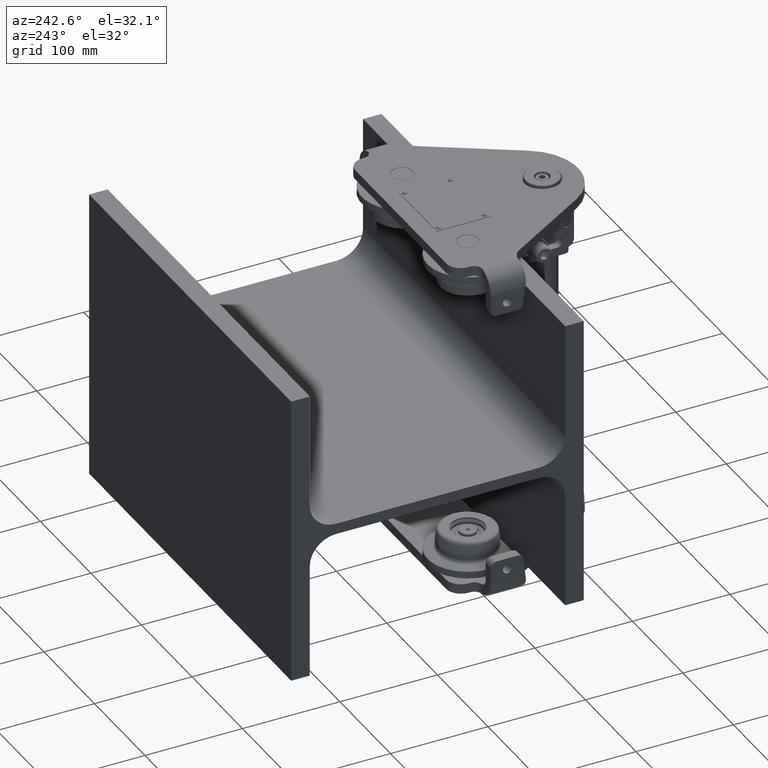
[diagram: clean part render]
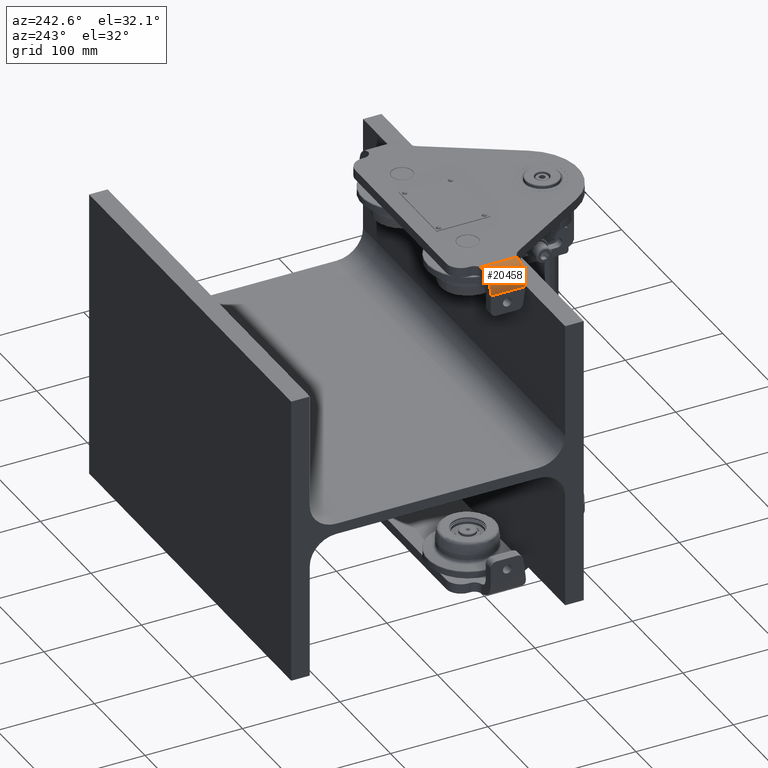
[diagram: same view with one face highlighted and labeled with its STEP entity id]
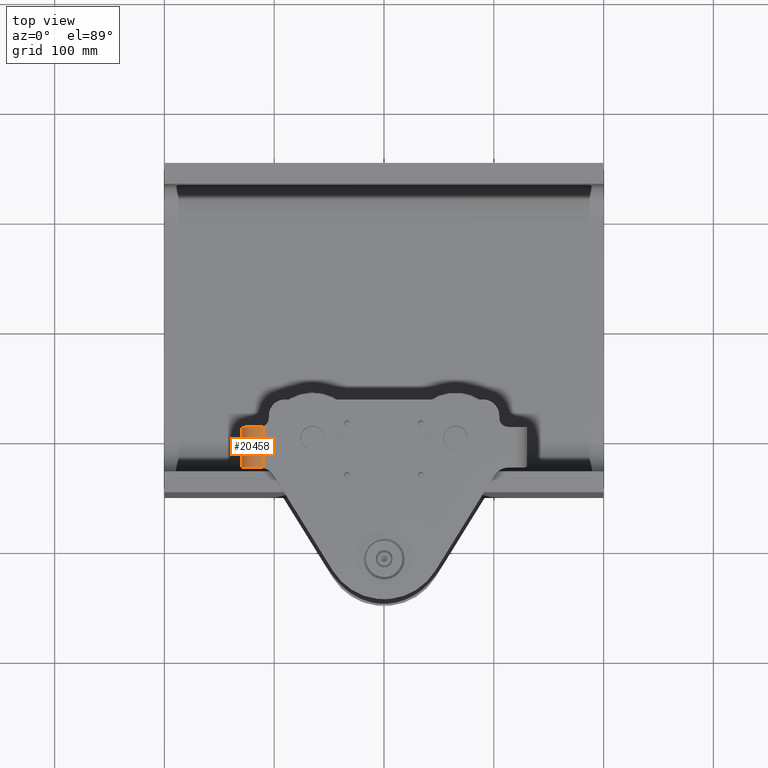
[diagram: same view with one face highlighted and labeled with its STEP entity id]
A machine part, auxiliary view. The second image highlights one B-rep face of the part: STEP entity #20458.
A second angle (top view) of the same face is appended — the face is thin or edge-on in the first view.
In plain terms, the highlighted cylindrical surface (edge-blend (fillet) strip) has radius 20 mm, axis along (0, 1, -0).
Its self-contained STEP definition (entity closure, byte-faithful):
#382 = CARTESIAN_POINT ( 'NONE',  ( -127.3205080756888200, -127.9999999999999400, 164.9999999999998000 ) ) ;
#823 = LINE ( 'NONE', #44113, #13880 ) ;
#3025 = AXIS2_PLACEMENT_3D ( 'NONE', #26393, #43182, #26040 ) ;
#4226 = VERTEX_POINT ( 'NONE', #9128 ) ;
#6996 = DIRECTION ( 'NONE',  ( -0.0000000000000000000, 1.000000000000000000, -1.224606353822377300E-016 ) ) ;
#7060 = AXIS2_PLACEMENT_3D ( 'NONE', #43326, #9977, #27410 ) ;
#8558 = CARTESIAN_POINT ( 'NONE',  ( -127.3205080756888200, -127.9999999999999400, 164.9999999999998000 ) ) ;
#9128 = CARTESIAN_POINT ( 'NONE',  ( -130.0000000000000300, -126.5945916529760900, 154.9999999999998300 ) ) ;
#9849 = CARTESIAN_POINT ( 'NONE',  ( -110.0000000000000600, -128.3788870286337000, 174.9999999999998300 ) ) ;
#9977 = DIRECTION ( 'NONE',  ( 0.0000000000000000000, 1.000000000000000000, -1.224606353822377300E-016 ) ) ;
#10219 = EDGE_CURVE ( 'NONE', #23350, #43000, #37916, .T. ) ;
#10536 = EDGE_CURVE ( 'NONE', #43000, #39490, #20353, .T. ) ;
#11892 = ORIENTED_EDGE ( 'NONE', *, *, #10536, .T. ) ;
#12825 = CARTESIAN_POINT ( 'NONE',  ( -130.0000000000000300, -126.5945916529760900, 154.9999999999998300 ) ) ;
#12948 =( BOUNDED_CURVE ( )  B_SPLINE_CURVE ( 3, ( #382, #37986, #34194, #12825 ),
 .UNSPECIFIED., .F., .T. ) 
 B_SPLINE_CURVE_WITH_KNOTS ( ( 4, 4 ),
 ( 4.188790204786389600, 4.712388980384687900 ),
 .UNSPECIFIED. ) 
 CURVE ( )  GEOMETRIC_REPRESENTATION_ITEM ( )  RATIONAL_B_SPLINE_CURVE ( ( 1.000000000000000000, 0.9772838841927120600, 0.9772838841927120600, 1.000000000000000000 ) ) 
 REPRESENTATION_ITEM ( '' )  );
#13373 = CARTESIAN_POINT ( 'NONE',  ( -112.2272514541946200, -127.9999999999999400, 174.9082017335497300 ) ) ;
#13557 = CARTESIAN_POINT ( 'NONE',  ( -110.0000000000000600, -128.3788870286337000, 174.9999999999998300 ) ) ;
#13880 = VECTOR ( 'NONE', #18791, 1000.000000000000000 ) ;
#15145 = EDGE_CURVE ( 'NONE', #19351, #19349, #15187, .T. ) ;
#15187 = B_SPLINE_CURVE_WITH_KNOTS ( 'NONE', 3,
 ( #37818, #50058, #49880, #16999, #21148, #29340 ),
 .UNSPECIFIED., .F., .F.,
 ( 4, 2, 4 ),
 ( 0.0000000000000000000, 0.001533366325088487800, 0.003066732650176975600 ),
 .UNSPECIFIED. ) ;
#16999 = CARTESIAN_POINT ( 'NONE',  ( -111.9731535875460100, -90.95020859046160000, 174.9087612170385500 ) ) ;
#17308 = CYLINDRICAL_SURFACE ( 'NONE', #7060, 19.99999999999998900 ) ;
#18298 = EDGE_CURVE ( 'NONE', #19349, #20779, #50295, .T. ) ;
#18791 = DIRECTION ( 'NONE',  ( 0.0000000000000000000, 1.000000000000000000, -1.224606353822377300E-016 ) ) ;
#19349 = VERTEX_POINT ( 'NONE', #38921 ) ;
#19351 = VERTEX_POINT ( 'NONE', #40988 ) ;
#20353 = B_SPLINE_CURVE_WITH_KNOTS ( 'NONE', 3,
 ( #42322, #13373, #21705, #13557 ),
 .UNSPECIFIED., .F., .F.,
 ( 4, 4 ),
 ( 0.0000000000000000000, 0.003383261461284174300 ),
 .UNSPECIFIED. ) ;
#20458 = ADVANCED_FACE ( 'NONE', ( #49825 ), #17308, .T. ) ;
#20779 = VERTEX_POINT ( 'NONE', #45519 ) ;
#20982 = CARTESIAN_POINT ( 'NONE',  ( -130.0000000000000300, -247.9999999999999400, 154.9999999999998300 ) ) ;
#21148 = CARTESIAN_POINT ( 'NONE',  ( -112.4873485003007000, -90.99999999999991500, 174.8514976354213400 ) ) ;
#21604 = ORIENTED_EDGE ( 'NONE', *, *, #18298, .T. ) ;
#21705 = CARTESIAN_POINT ( 'NONE',  ( -111.1101546632487100, -128.1245212927356900, 174.9999999999998300 ) ) ;
#23350 = VERTEX_POINT ( 'NONE', #8558 ) ;
#23691 = ORIENTED_EDGE ( 'NONE', *, *, #26228, .F. ) ;
#26040 = DIRECTION ( 'NONE',  ( -1.000000000000000000, -2.081668171172169700E-015, -1.387778780781446500E-015 ) ) ;
#26228 = EDGE_CURVE ( 'NONE', #4226, #20779, #50949, .T. ) ;
#26393 = CARTESIAN_POINT ( 'NONE',  ( -110.0000000000000400, -90.99999999999990100, 154.9999999999998000 ) ) ;
#27410 = DIRECTION ( 'NONE',  ( -1.000000000000000000, 0.0000000000000000000, 0.0000000000000000000 ) ) ;
#29340 = CARTESIAN_POINT ( 'NONE',  ( -113.0000000000000600, -90.99999999999990100, 174.7737199332850100 ) ) ;
#32065 = VECTOR ( 'NONE', #41294, 1000.000000000000000 ) ;
#32635 = ORIENTED_EDGE ( 'NONE', *, *, #50740, .T. ) ;
#34194 = CARTESIAN_POINT ( 'NONE',  ( -130.0000000000000600, -127.0908602087687500, 158.5311342560584900 ) ) ;
#36065 = DIRECTION ( 'NONE',  ( 1.000000000000000000, 0.0000000000000000000, -1.387778780781445500E-015 ) ) ;
#37818 = CARTESIAN_POINT ( 'NONE',  ( -110.0000000000000600, -90.41619848709557100, 174.9999999999998300 ) ) ;
#37916 = CIRCLE ( 'NONE', #42185, 20.00000000000000400 ) ;
#37986 = CARTESIAN_POINT ( 'NONE',  ( -129.0860752037181100, -127.5702188235840700, 161.9419480300795700 ) ) ;
#38921 = CARTESIAN_POINT ( 'NONE',  ( -113.0000000000000600, -90.99999999999990100, 174.7737199332850100 ) ) ;
#39300 = EDGE_CURVE ( 'NONE', #23350, #4226, #12948, .T. ) ;
#39490 = VERTEX_POINT ( 'NONE', #9849 ) ;
#40988 = CARTESIAN_POINT ( 'NONE',  ( -110.0000000000000600, -90.41619848709557100, 174.9999999999998300 ) ) ;
#41294 = DIRECTION ( 'NONE',  ( 0.0000000000000000000, 1.000000000000000000, -1.224606353822377300E-016 ) ) ;
#42185 = AXIS2_PLACEMENT_3D ( 'NONE', #44585, #6996, #36065 ) ;
#42322 = CARTESIAN_POINT ( 'NONE',  ( -113.3500829062199200, -127.9999999999999400, 174.7174274316262200 ) ) ;
#42399 = ORIENTED_EDGE ( 'NONE', *, *, #10219, .T. ) ;
#43000 = VERTEX_POINT ( 'NONE', #52669 ) ;
#43182 = DIRECTION ( 'NONE',  ( 1.836766033387211700E-015, -1.000000000000000000, 1.224606353822377300E-016 ) ) ;
#43326 = CARTESIAN_POINT ( 'NONE',  ( -110.0000000000000400, -247.9999999999999400, 154.9999999999998300 ) ) ;
#44113 = CARTESIAN_POINT ( 'NONE',  ( -110.0000000000000600, -247.9999999999999400, 174.9999999999998300 ) ) ;
#44585 = CARTESIAN_POINT ( 'NONE',  ( -110.0000000000000400, -127.9999999999999400, 154.9999999999998000 ) ) ;
#45519 = CARTESIAN_POINT ( 'NONE',  ( -130.0000000000000000, -90.99999999999994300, 154.9999999999998000 ) ) ;
#47107 = ORIENTED_EDGE ( 'NONE', *, *, #39300, .F. ) ;
#49194 = EDGE_LOOP ( 'NONE', ( #47107, #42399, #11892, #32635, #50314, #21604, #23691 ) ) ;
#49825 = FACE_OUTER_BOUND ( 'NONE', #49194, .T. ) ;
#49880 = CARTESIAN_POINT ( 'NONE',  ( -110.9716709835082000, -90.75539241995376500, 174.9826916049092300 ) ) ;
#50058 = CARTESIAN_POINT ( 'NONE',  ( -110.4806414219645100, -90.61062751544511700, 174.9999999999998600 ) ) ;
#50295 = CIRCLE ( 'NONE', #3025, 19.99999999999998900 ) ;
#50314 = ORIENTED_EDGE ( 'NONE', *, *, #15145, .T. ) ;
#50740 = EDGE_CURVE ( 'NONE', #39490, #19351, #823, .T. ) ;
#50949 = LINE ( 'NONE', #20982, #32065 ) ;
#52669 = CARTESIAN_POINT ( 'NONE',  ( -113.3500829062199200, -127.9999999999999400, 174.7174274316262200 ) ) ;